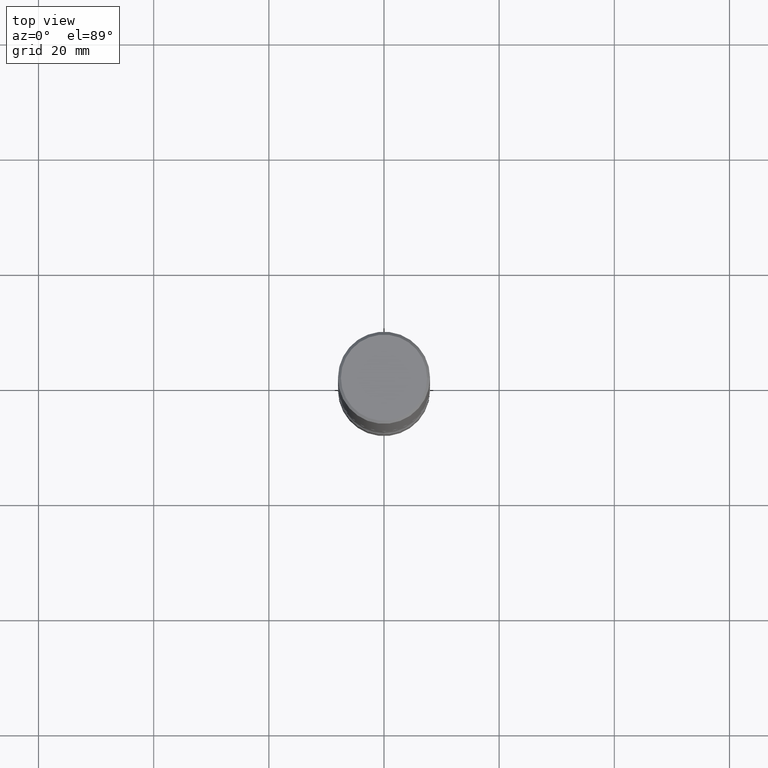
[diagram: clean part render]
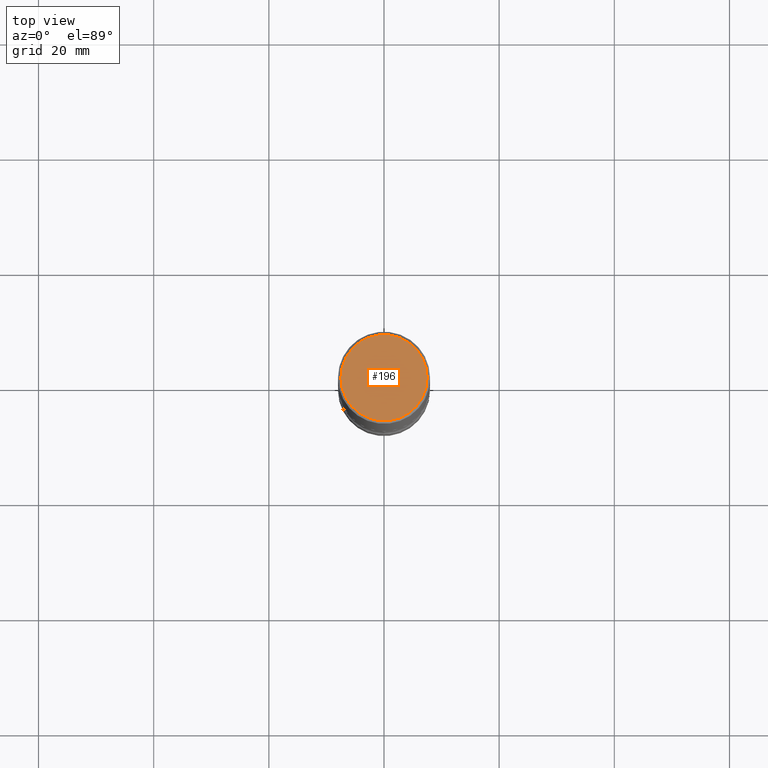
[diagram: same view with one face highlighted and labeled with its STEP entity id]
A machine part, top view. The second image highlights one B-rep face of the part: STEP entity #196.
In plain terms, the highlighted planar face has unit normal (0, -0, -1).
Its self-contained STEP definition (entity closure, byte-faithful):
#3 = DIRECTION ( 'NONE',  ( -1.000000000000000000, 6.982962677686265922E-15, -4.876176775795935793E-29 ) ) ;
#8 = PLANE ( 'NONE',  #44 ) ;
#13 = EDGE_CURVE ( 'NONE', #256, #185, #189, .T. ) ;
#44 = AXIS2_PLACEMENT_3D ( 'NONE', #347, #528, #3 ) ;
#80 = AXIS2_PLACEMENT_3D ( 'NONE', #382, #559, #88 ) ;
#82 = DIRECTION ( 'NONE',  ( 1.000000000000000000, -6.982962677686267499E-15, 4.876053491004737710E-29 ) ) ;
#88 = DIRECTION ( 'NONE',  ( 1.000000000000000000, -6.982962677686267499E-15, 4.876053491004737710E-29 ) ) ;
#170 = ORIENTED_EDGE ( 'NONE', *, *, #379, .T. ) ;
#185 = VERTEX_POINT ( 'NONE', #225 ) ;
#189 = CIRCLE ( 'NONE', #80, 0.2949499999999998234 ) ;
#196 = ADVANCED_FACE ( 'NONE', ( #407 ), #8, .F. ) ;
#202 = AXIS2_PLACEMENT_3D ( 'NONE', #374, #287, #82 ) ;
#225 = CARTESIAN_POINT ( 'NONE',  ( -0.2949499999999998234, 2.094539655171994135E-15, 1.280553747028672311E-17 ) ) ;
#256 = VERTEX_POINT ( 'NONE', #486 ) ;
#287 = DIRECTION ( 'NONE',  ( -2.445468806185136597E-29, 3.491481338843145583E-15, 1.000000000000000000 ) ) ;
#314 = EDGE_LOOP ( 'NONE', ( #170, #455 ) ) ;
#347 = CARTESIAN_POINT ( 'NONE',  ( 2.059624841783562880E-15, 0.2949499999999998234, -1.023409652156634547E-15 ) ) ;
#374 = CARTESIAN_POINT ( 'NONE',  ( -3.131554243005663153E-46, 4.471029511141347348E-32, 1.280553747030124924E-17 ) ) ;
#379 = EDGE_CURVE ( 'NONE', #185, #256, #380, .T. ) ;
#380 = CIRCLE ( 'NONE', #202, 0.2949499999999998234 ) ;
#382 = CARTESIAN_POINT ( 'NONE',  ( -3.131554243005663153E-46, 4.471029511141347348E-32, 1.280553747030124924E-17 ) ) ;
#407 = FACE_OUTER_BOUND ( 'NONE', #314, .T. ) ;
#455 = ORIENTED_EDGE ( 'NONE', *, *, #13, .T. ) ;
#486 = CARTESIAN_POINT ( 'NONE',  ( 0.2949499999999998234, -2.127023677808859286E-15, 1.280553747031588939E-17 ) ) ;
#528 = DIRECTION ( 'NONE',  ( 2.438088387897960049E-29, -3.491481338843145188E-15, -1.000000000000000000 ) ) ;
#559 = DIRECTION ( 'NONE',  ( -2.445468806185136597E-29, 3.491481338843145583E-15, 1.000000000000000000 ) ) ;